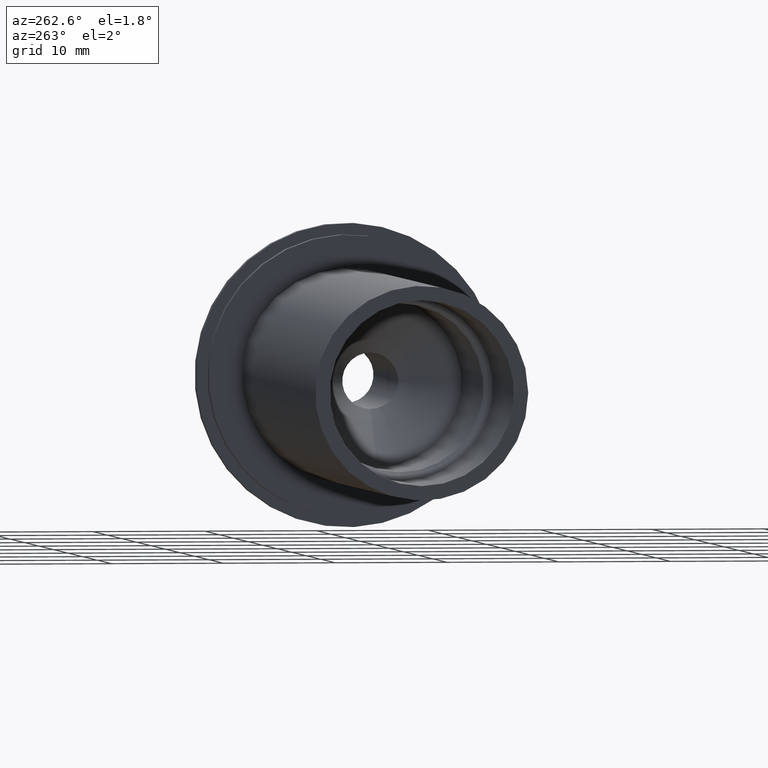
[diagram: clean part render]
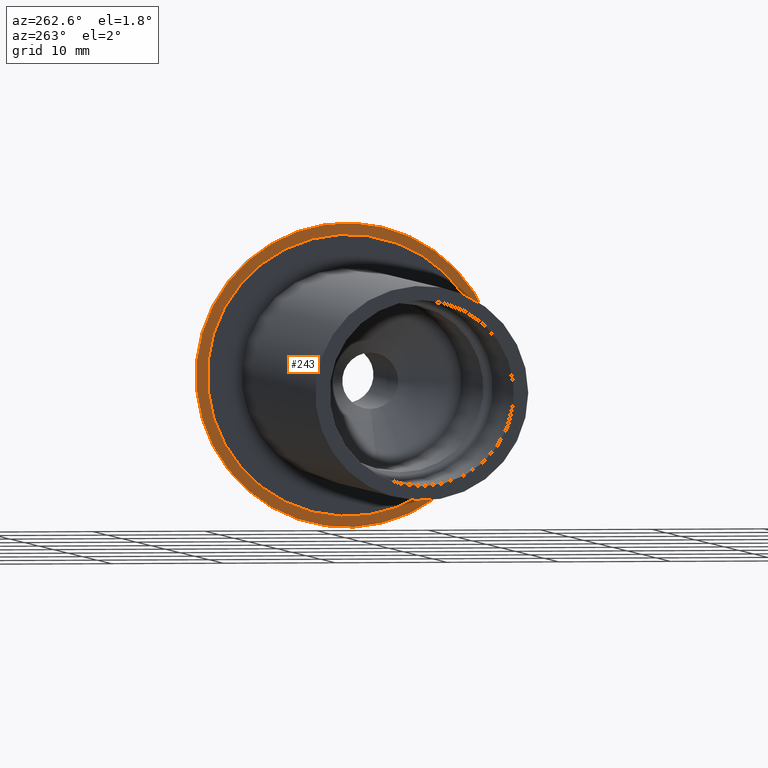
[diagram: same view with one face highlighted and labeled with its STEP entity id]
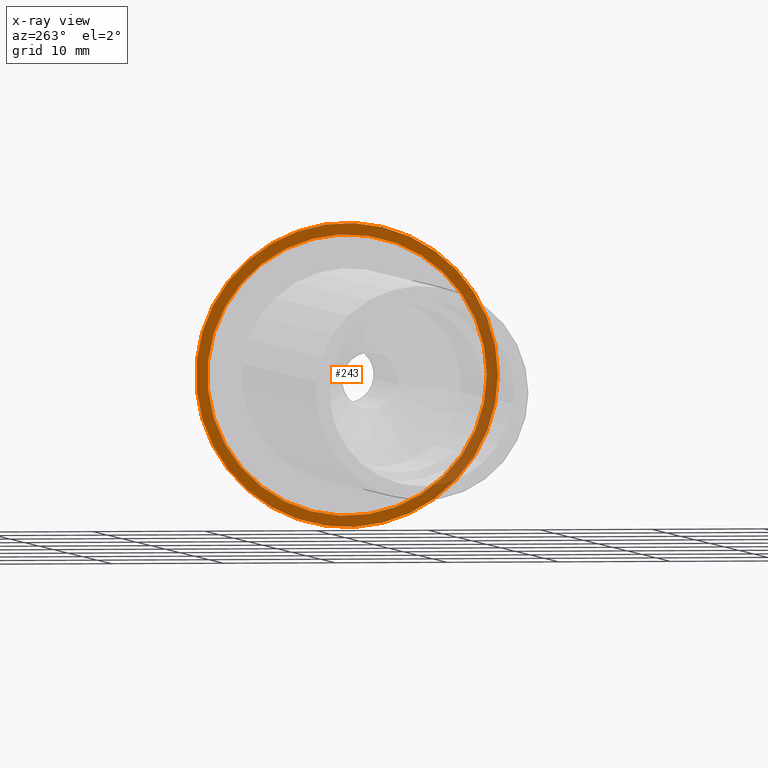
[diagram: x-ray of the same camera — body ghosted, the highlighted face saturated]
A machine part, auxiliary view. The second image highlights one B-rep face of the part: STEP entity #243.
The next image is the same camera in x-ray: the body ghosted, the highlighted face saturated — about 25% of this face is hidden behind the body in this view.
In plain terms, the highlighted planar face has unit normal (-1, 0, 0).
Its self-contained STEP definition (entity closure, byte-faithful):
#86=FACE_BOUND('',#114,.T.);
#90=PLANE('',#285);
#101=FACE_OUTER_BOUND('',#113,.T.);
#113=EDGE_LOOP('',(#212));
#114=EDGE_LOOP('',(#213));
#147=CIRCLE('',#286,13.5);
#148=CIRCLE('',#287,12.5);
#163=VERTEX_POINT('',#432);
#164=VERTEX_POINT('',#434);
#181=EDGE_CURVE('',#163,#163,#147,.T.);
#182=EDGE_CURVE('',#164,#164,#148,.T.);
#212=ORIENTED_EDGE('',*,*,#181,.F.);
#213=ORIENTED_EDGE('',*,*,#182,.T.);
#243=ADVANCED_FACE('',(#101,#86),#90,.T.);
#285=AXIS2_PLACEMENT_3D('',#431,#345,#346);
#286=AXIS2_PLACEMENT_3D('',#433,#347,#348);
#287=AXIS2_PLACEMENT_3D('',#435,#349,#350);
#345=DIRECTION('center_axis',(-1.,0.,0.));
#346=DIRECTION('ref_axis',(0.,0.,1.));
#347=DIRECTION('center_axis',(1.,0.,0.));
#348=DIRECTION('ref_axis',(0.,0.,-1.));
#349=DIRECTION('center_axis',(1.,0.,0.));
#350=DIRECTION('ref_axis',(0.,0.,-1.));
#431=CARTESIAN_POINT('Origin',(-0.999999999999996,13.5,0.));
#432=CARTESIAN_POINT('',(-0.999999999999996,-13.5,-1.65327317884893E-15));
#433=CARTESIAN_POINT('Origin',(-0.999999999999996,0.,0.));
#434=CARTESIAN_POINT('',(-0.999999999999996,-12.5,-1.53080849893419E-15));
#435=CARTESIAN_POINT('Origin',(-0.999999999999996,0.,0.));